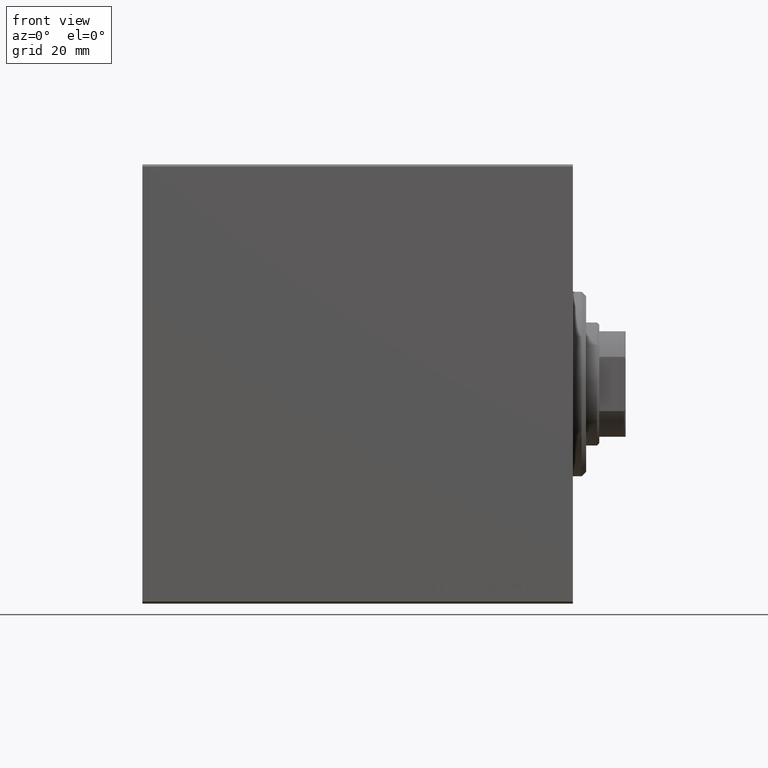
[diagram: clean part render]
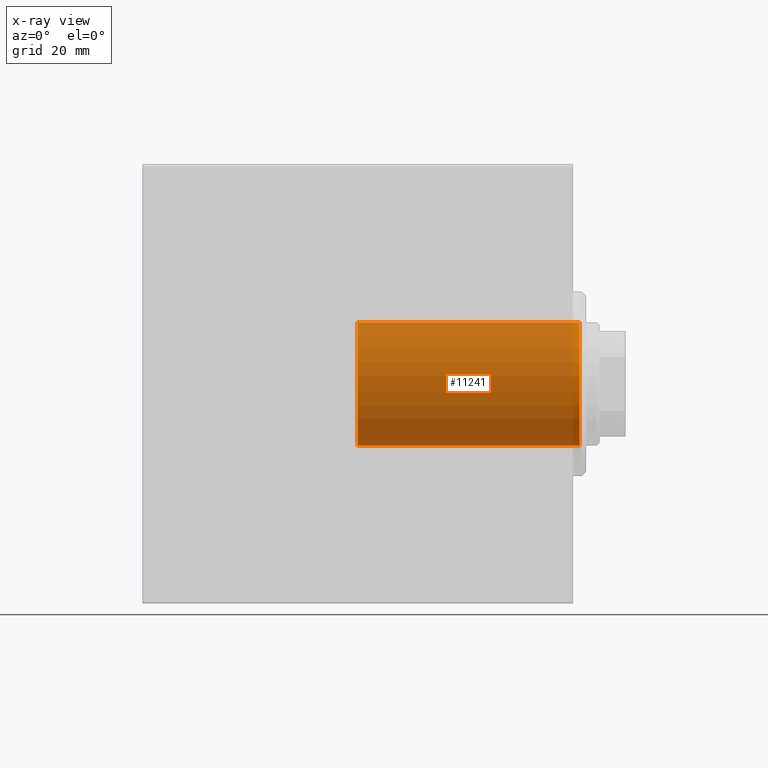
[diagram: x-ray — body ghosted, one internal face saturated and labeled with its STEP entity id]
A machine part, front view, then the same camera in x-ray: the body is ghosted and one INTERNAL B-rep face — a face not visible from any outside direction — is saturated and labeled: STEP entity #11241.
In plain terms, the highlighted cylindrical surface (partial cylindrical patch) has radius 14 mm, axis along (1, 0, 0).
Its self-contained STEP definition (entity closure, byte-faithful):
#698 = EDGE_LOOP ( 'NONE', ( #20039, #18167, #35760, #10763 ) ) ;
#1118 = CARTESIAN_POINT ( 'NONE',  ( -48.99999999999999289, 0.000000000000000000, -14.00000000000000000 ) ) ;
#2231 = CARTESIAN_POINT ( 'NONE',  ( 1.500000000000001332, 0.000000000000000000, 0.000000000000000000 ) ) ;
#4075 = LINE ( 'NONE', #1118, #9566 ) ;
#6309 = VERTEX_POINT ( 'NONE', #40267 ) ;
#7042 = CIRCLE ( 'NONE', #39021, 14.00000000000000000 ) ;
#9566 = VECTOR ( 'NONE', #35019, 1000.000000000000000 ) ;
#10188 = FACE_OUTER_BOUND ( 'NONE', #698, .T. ) ;
#10763 = ORIENTED_EDGE ( 'NONE', *, *, #28568, .F. ) ;
#11241 = ADVANCED_FACE ( 'NONE', ( #10188 ), #21087, .F. ) ;
#11500 = CIRCLE ( 'NONE', #15864, 14.00000000000000000 ) ;
#12691 = DIRECTION ( 'NONE',  ( 1.000000000000000000, 0.000000000000000000, 0.000000000000000000 ) ) ;
#14324 = EDGE_CURVE ( 'NONE', #42349, #6309, #39294, .T. ) ;
#14931 = CARTESIAN_POINT ( 'NONE',  ( -48.99999999999999289, 1.714505518806294244E-15, 14.00000000000000000 ) ) ;
#15864 = AXIS2_PLACEMENT_3D ( 'NONE', #2231, #12691, #16545 ) ;
#16545 = DIRECTION ( 'NONE',  ( 0.000000000000000000, 0.000000000000000000, -1.000000000000000000 ) ) ;
#18167 = ORIENTED_EDGE ( 'NONE', *, *, #14324, .T. ) ;
#18174 = DIRECTION ( 'NONE',  ( 1.000000000000000000, 0.000000000000000000, 0.000000000000000000 ) ) ;
#20039 = ORIENTED_EDGE ( 'NONE', *, *, #37501, .F. ) ;
#21087 = CYLINDRICAL_SURFACE ( 'NONE', #36100, 14.00000000000000000 ) ;
#21351 = CARTESIAN_POINT ( 'NONE',  ( -48.99999999999999289, 0.000000000000000000, 0.000000000000000000 ) ) ;
#23497 = VERTEX_POINT ( 'NONE', #33787 ) ;
#23601 = DIRECTION ( 'NONE',  ( 0.000000000000000000, 0.000000000000000000, -1.000000000000000000 ) ) ;
#24487 = DIRECTION ( 'NONE',  ( 1.000000000000000000, -0.000000000000000000, -0.000000000000000000 ) ) ;
#27615 = VERTEX_POINT ( 'NONE', #38087 ) ;
#28415 = DIRECTION ( 'NONE',  ( 0.000000000000000000, 0.000000000000000000, -1.000000000000000000 ) ) ;
#28568 = EDGE_CURVE ( 'NONE', #27615, #23497, #4075, .T. ) ;
#28843 = DIRECTION ( 'NONE',  ( 1.000000000000000000, -0.000000000000000000, -0.000000000000000000 ) ) ;
#30877 = CARTESIAN_POINT ( 'NONE',  ( -48.99999999999999289, 0.000000000000000000, 0.000000000000000000 ) ) ;
#31790 = CARTESIAN_POINT ( 'NONE',  ( -48.99999999999999289, 1.714505518806294244E-15, 14.00000000000000000 ) ) ;
#33787 = CARTESIAN_POINT ( 'NONE',  ( 1.500000000000001332, 0.000000000000000000, -14.00000000000000000 ) ) ;
#35019 = DIRECTION ( 'NONE',  ( 1.000000000000000000, -0.000000000000000000, -0.000000000000000000 ) ) ;
#35330 = VECTOR ( 'NONE', #28843, 1000.000000000000000 ) ;
#35760 = ORIENTED_EDGE ( 'NONE', *, *, #40360, .T. ) ;
#36100 = AXIS2_PLACEMENT_3D ( 'NONE', #30877, #24487, #23601 ) ;
#37501 = EDGE_CURVE ( 'NONE', #42349, #27615, #7042, .T. ) ;
#38087 = CARTESIAN_POINT ( 'NONE',  ( -48.99999999999999289, 0.000000000000000000, -14.00000000000000000 ) ) ;
#39021 = AXIS2_PLACEMENT_3D ( 'NONE', #21351, #18174, #28415 ) ;
#39294 = LINE ( 'NONE', #31790, #35330 ) ;
#40267 = CARTESIAN_POINT ( 'NONE',  ( 1.500000000000001332, 1.714505518806294244E-15, 14.00000000000000000 ) ) ;
#40360 = EDGE_CURVE ( 'NONE', #6309, #23497, #11500, .T. ) ;
#42349 = VERTEX_POINT ( 'NONE', #14931 ) ;